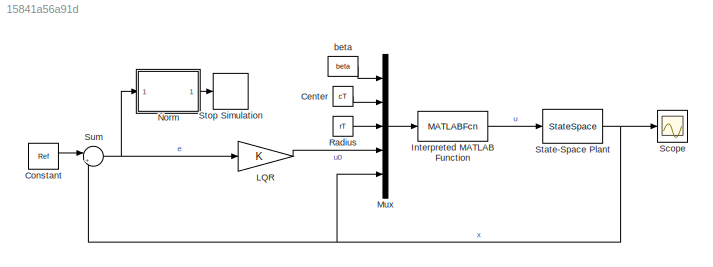
MODEL slx_15841a56a91d
KIND model
CONFIG AbsTol = auto
CONFIG EnableMultiTasking = off
CONFIG FixedStep = auto
CONFIG MaxStep = auto
CONFIG MinStep = auto
CONFIG PreLoadFcn = SafetyCriticalLQRParams
CONFIG RelTol = 1e-7
CONFIG SampleTimeConstraint = Unconstrained
CONFIG SolverName = VariableStepAuto
CONFIG StartTime = 0.0
CONFIG StopTime = tf_upperbound
BLOCK [Constant] Center
  NameLocation = left
  Value = cT
BLOCK [Constant] Constant
  Value = Ref
BLOCK [MATLABFcn] Interpreted MATLAB Function
  MATLABFcn = hMATLABfcn
  Ports = [1, 1]
BLOCK [Gain] LQR
  Gain = K
  Multiplication = Matrix(K*u) (u vector)
BLOCK [Mux] Mux
  DisplayOption = bar
  Inputs = 5
  Ports = [5, 1]
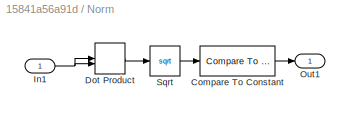
BLOCK [SubSystem] Norm
  Ports = [1, 1]
  RequestExecContextInheritance = off
BLOCK [Reference] Norm/Compare To Constant  REF=simulink/Logic and Bit
Operations/Compare
To Constant
  Ports = [1, 1]
  SourceBlock = simulink/Logic and Bit\nOperations/Compare\nTo Constant
  SourceProductBaseCode = SL
  SourceType = Compare To Constant
BLOCK [DotProduct] Norm/Dot Product
  OutDataTypeStr = Inherit: Inherit via internal rule
BLOCK [Inport] Norm/In1
BLOCK [Outport] Norm/Out1
BLOCK [Sqrt] Norm/Sqrt
BLOCK [Constant] Radius
  NameLocation = left
  Value = rT
BLOCK [Scope] Scope
  Floating = off
  NumInputPorts = 1
  Ports = [1]
  ScopeSpecificationString = Simulink.scopes.TimeScopeBlockCfg('CurrentConfiguration', extmgr.ConfigurationSet(extmgr.Configuration('Core','General UI',true),extmgr.Configuration('Core','Source UI',true),extmgr.Configuration('Sources','WiredSimulink',true),extmgr.Configuration('Visuals','Time Domain',true,'SerializedDisplays',{struct('MinYLimReal','-4.42569','MaxYLimReal','17.54698','YLabelReal','','MinYLimMag','0.00000','Max...<+1333ch>
BLOCK [StateSpace] State-Space Plant
  A = A
  B = B
  C = C
  D = D
  InitialCondition = x0
  Ports = [1, 1]
BLOCK [Stop] Stop Simulation
BLOCK [Sum] Sum
  Inputs = |+-
  Ports = [2, 1]
BLOCK [Constant] beta
  NameLocation = left
  Value = beta
LINE Center:1 -> Mux:2
LINE Constant:1 -> Sum:1
LINE Interpreted MATLAB Function:1 -> State-Space Plant:1
LINE LQR:1 -> Mux:4
LINE Mux:1 -> Interpreted MATLAB Function:1
LINE Norm/Compare To Constant:1 -> Norm/Out1:1
LINE Norm/Dot Product:1 -> Norm/Sqrt:1
NET Norm/In1:1 -> Norm/Dot Product:1, Norm/Dot Product:2
LINE Norm/Sqrt:1 -> Norm/Compare To Constant:1
LINE Norm:1 -> Stop Simulation:1
LINE Radius:1 -> Mux:3
NET State-Space Plant:1 -> Mux:5, Scope:1, Sum:2
NET Sum:1 -> LQR:1, Norm:1
LINE beta:1 -> Mux:1
note: NET lines group one-source signal fan-out (src -> all destinations, sorted); 1:1 wires keep LINE
